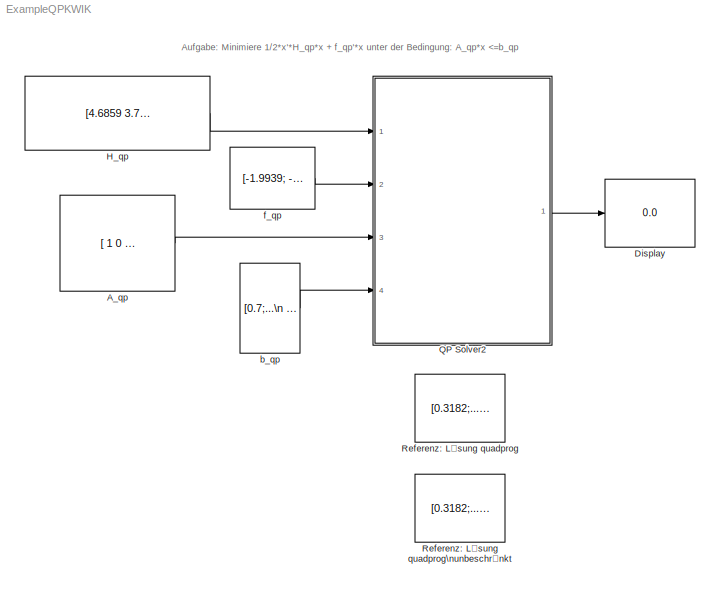
MODEL ExampleQPKWIK
KIND model
BLOCK [Constant] A_qp
  SID = 456
  Value = [ 1     0     0; ...\n         1     1     0; ...\n         1     1     1; ...\n        -1     0     0; ...\n        -1    -1     0; ...\n        -1    -1    -1]
  VectorParams1D = off
BLOCK [Display] Display
  Decimation = 1
  Ports = [1]
  SID = 457
BLOCK [Constant] H_qp
  SID = 458
  Value = [4.6859 3.7798 2.5703; ...\n       3.7798 3.5312 2.5406; ...\n       2.5703 2.5406 2.2015]
  VectorParams1D = off
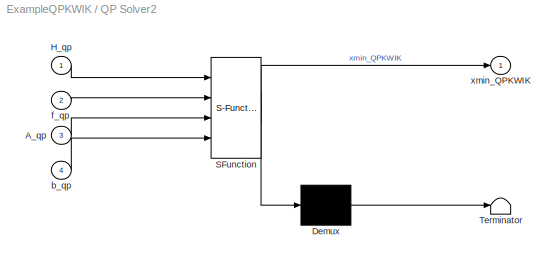
BLOCK [SubSystem] QP Solver2
  ErrorFcn = Stateflow.Translate.translate
  FunctionWithSeparateData = off
  MaskHideContents = off
  MinAlgLoopOccurrences = off
  Opaque = off
  PermitHierarchicalResolution = ExplicitOnly
  Ports = [4, 1]
  PropExecContextOutsideSubsystem = off
  RTWSystemCode = Auto
  RequestExecContextInheritance = off
  SFBlockType = MATLAB Function
  SID = 465
  TreatAsAtomicUnit = on
BLOCK [Demux] QP Solver2/ Demux 
  Outputs = 1
  Ports = [1, 1]
  SID = 465::46
BLOCK [S-Function] QP Solver2/ SFunction 
  EnableBusSupport = on
  FunctionName = sf_sfun
  PortCounts = [4 2]
  Ports = [4, 2]
  SID = 465::45
  Tag = Stateflow S-Function ExampleQPKWIK 3
BLOCK [Terminator] QP Solver2/ Terminator 
  SID = 465::47
BLOCK [Inport] QP Solver2/A_qp
  IconDisplay = Port number
  Port = 3
  SID = 465::25
BLOCK [Inport] QP Solver2/H_qp
  IconDisplay = Port number
  SID = 465::24
BLOCK [Inport] QP Solver2/b_qp
  IconDisplay = Port number
  Port = 4
  SID = 465::26
BLOCK [Inport] QP Solver2/f_qp
  IconDisplay = Port number
  Port = 2
  SID = 465::1
BLOCK [Outport] QP Solver2/xmin_QPKWIK
  IconDisplay = Port number
  SID = 465::44
BLOCK [Constant] Referenz: Lösung quadprog
  SID = 459
  Value = [0.3182;...\n              0.0188;...\n              0.1679]
  VectorParams1D = off
BLOCK [Constant] Referenz: Lösung quadprog\nunbeschränkt 
  SID = 460
  Value = [0.3182;...\n              0.0188;...\n              0.1679]
  VectorParams1D = off
BLOCK [Constant] b_qp
  SID = 461
  Value = [0.7;...\n       0.7;...\n       0.7;... \n       0.5;... \n       0.5;...\n       0.5]
  VectorParams1D = off
BLOCK [Constant] f_qp
  SID = 462
  Value = [-1.9939; -1.6959; -1.2354]
  VectorParams1D = off
ANNOTATION (root): Aufgabe: Minimiere 1/2*x'*H_qp*x + f_qp'*x unter der Bedingung: A_qp*x <=b_qp
LINE A_qp:1 -> QP Solver2:3
LINE H_qp:1 -> QP Solver2:1
LINE QP Solver2/ Demux :1 -> QP Solver2/ Terminator :1
LINE QP Solver2/ SFunction :1 -> QP Solver2/ Demux :1
LINE QP Solver2/ SFunction :2 -> QP Solver2/xmin_QPKWIK:1
LINE QP Solver2/A_qp:1 -> QP Solver2/ SFunction :3
LINE QP Solver2/H_qp:1 -> QP Solver2/ SFunction :1
LINE QP Solver2/b_qp:1 -> QP Solver2/ SFunction :4
LINE QP Solver2/f_qp:1 -> QP Solver2/ SFunction :2
LINE QP Solver2:1 -> Display:1
LINE b_qp:1 -> QP Solver2:4
LINE f_qp:1 -> QP Solver2:2
CHART QP Solver2 states=1 transitions=1
  STATE_LABEL 'eML_blk_kernel()'
